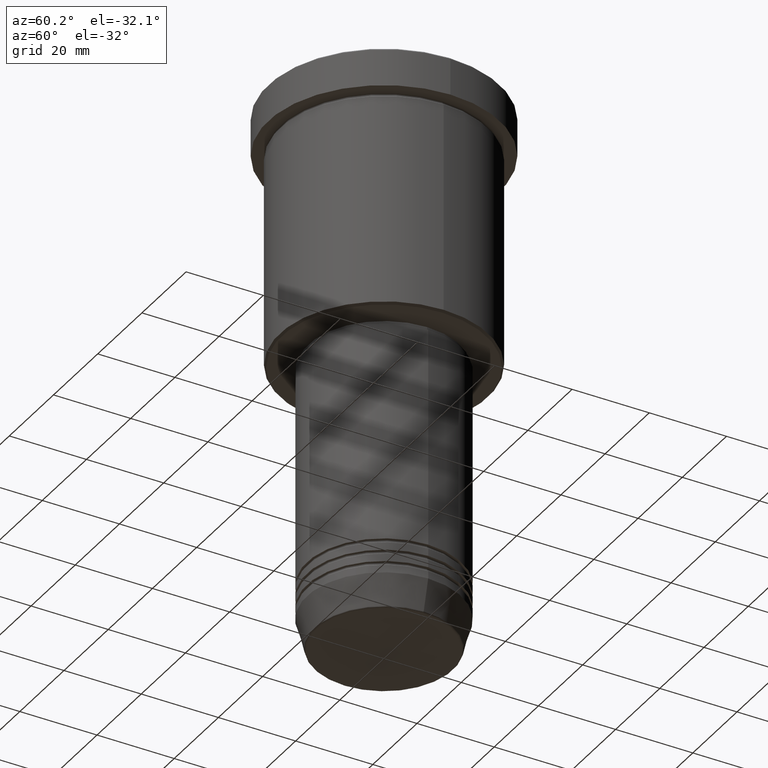
[diagram: clean part render]
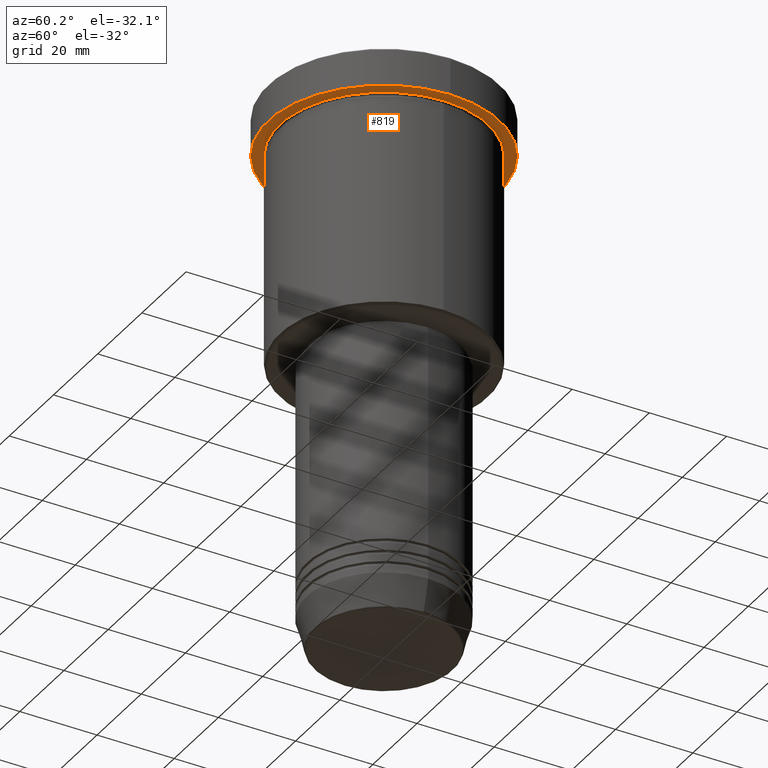
[diagram: same view with one face highlighted and labeled with its STEP entity id]
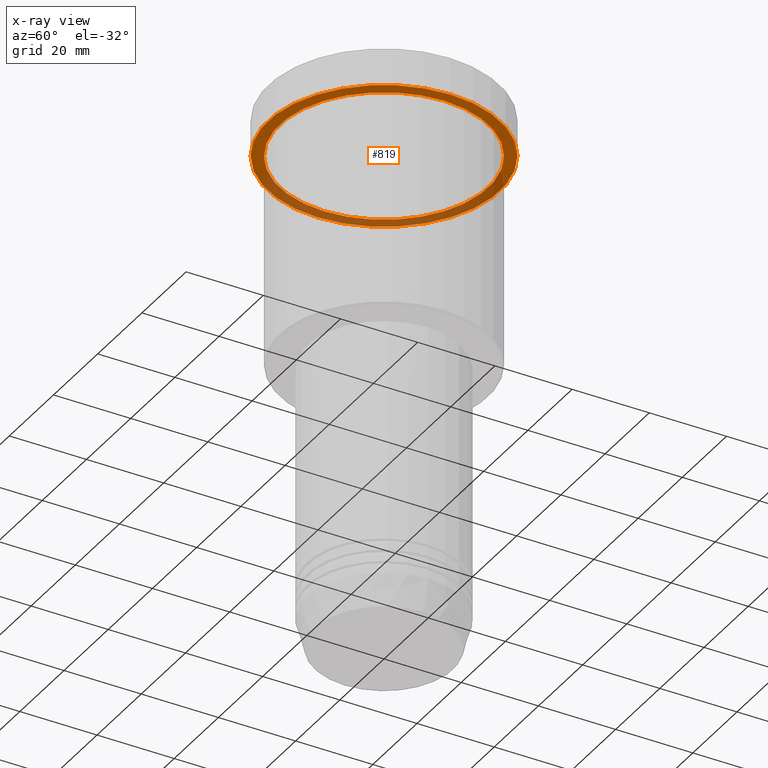
[diagram: x-ray of the same camera — body ghosted, the highlighted face saturated]
A machine part, auxiliary view. The second image highlights one B-rep face of the part: STEP entity #819.
The next image is the same camera in x-ray: the body ghosted, the highlighted face saturated — about 39% of this face is hidden behind the body in this view.
In plain terms, the highlighted planar face has unit normal (0, 0, -1).
Its self-contained STEP definition (entity closure, byte-faithful):
#1 = AXIS2_PLACEMENT_3D ( 'NONE', #394, #303, #383 ) ;
#64 = CARTESIAN_POINT ( 'NONE',  ( 0.000000000000000000, 30.00000000000000000, -9.999999999999992895 ) ) ;
#100 = CARTESIAN_POINT ( 'NONE',  ( 30.00000000000000000, 0.000000000000000000, -9.999999999999992895 ) ) ;
#176 = DIRECTION ( 'NONE',  ( -1.000000000000000000, 0.000000000000000000, -0.000000000000000000 ) ) ;
#186 = ORIENTED_EDGE ( 'NONE', *, *, #309, .F. ) ;
#282 = VERTEX_POINT ( 'NONE', #100 ) ;
#303 = DIRECTION ( 'NONE',  ( -0.000000000000000000, -0.000000000000000000, 1.000000000000000000 ) ) ;
#309 = EDGE_CURVE ( 'NONE', #782, #282, #518, .T. ) ;
#374 = CARTESIAN_POINT ( 'NONE',  ( -30.00000000000000000, 3.673940397442059178E-15, -9.999999999999992895 ) ) ;
#383 = DIRECTION ( 'NONE',  ( 1.000000000000000000, 0.000000000000000000, 0.000000000000000000 ) ) ;
#384 = EDGE_CURVE ( 'NONE', #877, #459, #925, .T. ) ;
#394 = CARTESIAN_POINT ( 'NONE',  ( 0.000000000000000000, 0.000000000000000000, -9.999999999999992895 ) ) ;
#419 = AXIS2_PLACEMENT_3D ( 'NONE', #841, #1122, #473 ) ;
#459 = VERTEX_POINT ( 'NONE', #1130 ) ;
#473 = DIRECTION ( 'NONE',  ( -1.000000000000000000, 0.000000000000000000, 0.000000000000000000 ) ) ;
#486 = CIRCLE ( 'NONE', #1166, 27.00000000000000355 ) ;
#516 = CARTESIAN_POINT ( 'NONE',  ( 0.000000000000000000, 0.000000000000000000, -9.999999999999992895 ) ) ;
#518 = CIRCLE ( 'NONE', #1, 30.00000000000000000 ) ;
#641 = CARTESIAN_POINT ( 'NONE',  ( 0.000000000000000000, 0.000000000000000000, -9.999999999999992895 ) ) ;
#653 = DIRECTION ( 'NONE',  ( -1.000000000000000000, 0.000000000000000000, 0.000000000000000000 ) ) ;
#668 = EDGE_LOOP ( 'NONE', ( #879, #186 ) ) ;
#715 = FACE_BOUND ( 'NONE', #1102, .T. ) ;
#782 = VERTEX_POINT ( 'NONE', #374 ) ;
#789 = ORIENTED_EDGE ( 'NONE', *, *, #903, .T. ) ;
#790 = AXIS2_PLACEMENT_3D ( 'NONE', #516, #1155, #1065 ) ;
#819 = ADVANCED_FACE ( 'NONE', ( #715, #1067 ), #1084, .T. ) ;
#841 = CARTESIAN_POINT ( 'NONE',  ( 0.000000000000000000, 0.000000000000000000, -9.999999999999992895 ) ) ;
#872 = AXIS2_PLACEMENT_3D ( 'NONE', #64, #893, #176 ) ;
#877 = VERTEX_POINT ( 'NONE', #984 ) ;
#879 = ORIENTED_EDGE ( 'NONE', *, *, #1054, .F. ) ;
#893 = DIRECTION ( 'NONE',  ( 0.000000000000000000, 0.000000000000000000, -1.000000000000000000 ) ) ;
#903 = EDGE_CURVE ( 'NONE', #459, #877, #486, .T. ) ;
#925 = CIRCLE ( 'NONE', #419, 27.00000000000000355 ) ;
#928 = CIRCLE ( 'NONE', #790, 30.00000000000000000 ) ;
#984 = CARTESIAN_POINT ( 'NONE',  ( 27.00000000000000355, 3.306546357697854128E-15, -9.999999999999992895 ) ) ;
#995 = DIRECTION ( 'NONE',  ( -0.000000000000000000, -0.000000000000000000, 1.000000000000000000 ) ) ;
#1054 = EDGE_CURVE ( 'NONE', #282, #782, #928, .T. ) ;
#1055 = ORIENTED_EDGE ( 'NONE', *, *, #384, .T. ) ;
#1065 = DIRECTION ( 'NONE',  ( 1.000000000000000000, 0.000000000000000000, 0.000000000000000000 ) ) ;
#1067 = FACE_OUTER_BOUND ( 'NONE', #668, .T. ) ;
#1084 = PLANE ( 'NONE',  #872 ) ;
#1102 = EDGE_LOOP ( 'NONE', ( #789, #1055 ) ) ;
#1122 = DIRECTION ( 'NONE',  ( -0.000000000000000000, -0.000000000000000000, 1.000000000000000000 ) ) ;
#1130 = CARTESIAN_POINT ( 'NONE',  ( -27.00000000000000355, 0.000000000000000000, -9.999999999999992895 ) ) ;
#1155 = DIRECTION ( 'NONE',  ( -0.000000000000000000, -0.000000000000000000, 1.000000000000000000 ) ) ;
#1166 = AXIS2_PLACEMENT_3D ( 'NONE', #641, #995, #653 ) ;